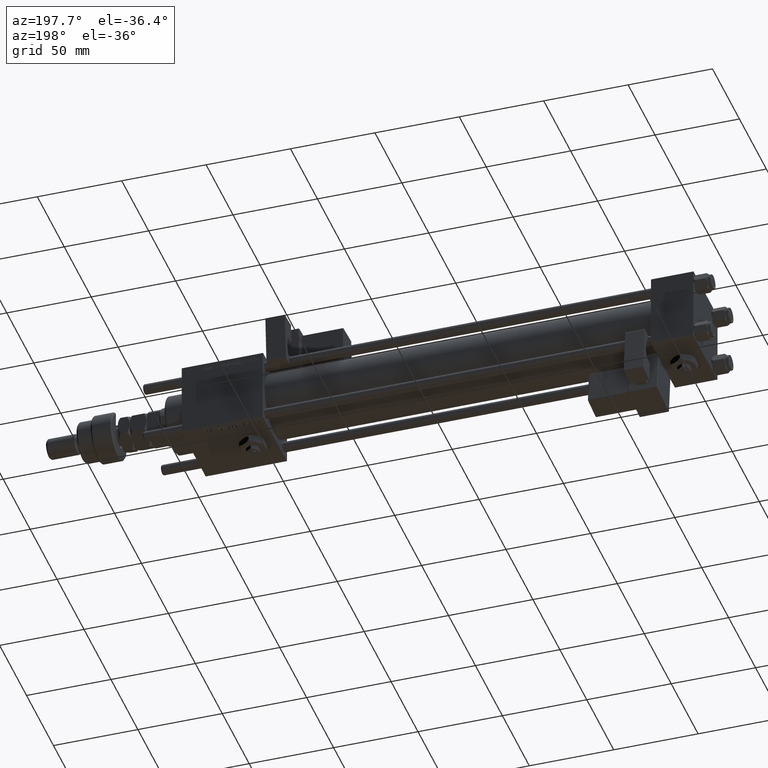
[diagram: clean part render]
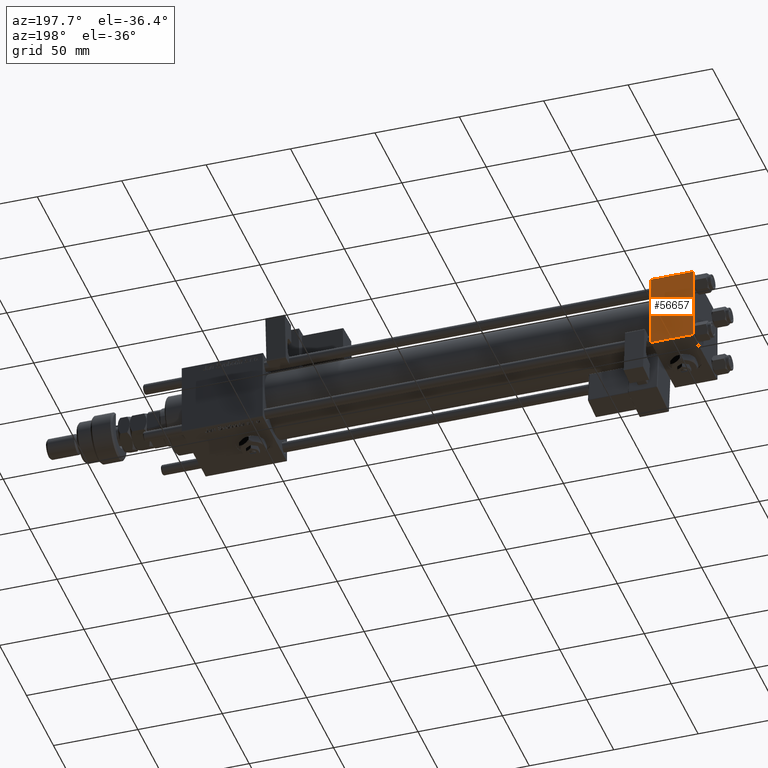
[diagram: same view with one face highlighted and labeled with its STEP entity id]
A machine part, auxiliary view. The second image highlights one B-rep face of the part: STEP entity #56657.
In plain terms, the highlighted planar face has unit normal (0, 1, 0).
Its self-contained STEP definition (entity closure, byte-faithful):
#335 = VERTEX_POINT ( 'NONE', #49929 ) ;
#3021 = CARTESIAN_POINT ( 'NONE',  ( 0.000000000000000000, 22.50000000000000000, -21.99999999999996803 ) ) ;
#6080 = LINE ( 'NONE', #40983, #53287 ) ;
#6921 = DIRECTION ( 'NONE',  ( 0.000000000000000000, -0.000000000000000000, 1.000000000000000000 ) ) ;
#9641 = EDGE_CURVE ( 'NONE', #15261, #34990, #15366, .T. ) ;
#12111 = LINE ( 'NONE', #31830, #22210 ) ;
#14577 = ORIENTED_EDGE ( 'NONE', *, *, #45523, .T. ) ;
#15261 = VERTEX_POINT ( 'NONE', #58933 ) ;
#15359 = CARTESIAN_POINT ( 'NONE',  ( 25.00000000000000000, 22.50000000000000000, 22.50000000000000355 ) ) ;
#15366 = LINE ( 'NONE', #35400, #59145 ) ;
#20717 = LINE ( 'NONE', #36235, #57941 ) ;
#21164 = PLANE ( 'NONE',  #27296 ) ;
#22210 = VECTOR ( 'NONE', #51519, 1000.000000000000000 ) ;
#27286 = ORIENTED_EDGE ( 'NONE', *, *, #59768, .T. ) ;
#27296 = AXIS2_PLACEMENT_3D ( 'NONE', #15359, #55097, #6921 ) ;
#31830 = CARTESIAN_POINT ( 'NONE',  ( 25.00000000000000000, 22.50000000000000000, 21.99999999999999645 ) ) ;
#33328 = EDGE_LOOP ( 'NONE', ( #14577, #40397, #38999, #27286 ) ) ;
#34990 = VERTEX_POINT ( 'NONE', #3021 ) ;
#35076 = DIRECTION ( 'NONE',  ( 0.000000000000000000, 0.000000000000000000, -1.000000000000000000 ) ) ;
#35400 = CARTESIAN_POINT ( 'NONE',  ( 0.000000000000000000, 22.50000000000000000, 22.50000000000000355 ) ) ;
#36235 = CARTESIAN_POINT ( 'NONE',  ( 25.00000000000000000, 22.50000000000000000, 22.50000000000000355 ) ) ;
#36472 = DIRECTION ( 'NONE',  ( -1.000000000000000000, 0.000000000000000000, 0.000000000000000000 ) ) ;
#38999 = ORIENTED_EDGE ( 'NONE', *, *, #9641, .F. ) ;
#39904 = FACE_OUTER_BOUND ( 'NONE', #33328, .T. ) ;
#40397 = ORIENTED_EDGE ( 'NONE', *, *, #63578, .T. ) ;
#40983 = CARTESIAN_POINT ( 'NONE',  ( 25.00000000000000000, 22.50000000000000000, -21.99999999999998224 ) ) ;
#45523 = EDGE_CURVE ( 'NONE', #335, #48918, #20717, .T. ) ;
#48918 = VERTEX_POINT ( 'NONE', #52837 ) ;
#49929 = CARTESIAN_POINT ( 'NONE',  ( 25.00000000000000000, 22.50000000000000000, 21.99999999999999645 ) ) ;
#51519 = DIRECTION ( 'NONE',  ( 1.000000000000000000, 0.000000000000000000, 0.000000000000000000 ) ) ;
#52837 = CARTESIAN_POINT ( 'NONE',  ( 25.00000000000000000, 22.50000000000000000, -21.99999999999996803 ) ) ;
#53287 = VECTOR ( 'NONE', #36472, 1000.000000000000000 ) ;
#54648 = DIRECTION ( 'NONE',  ( 0.000000000000000000, 0.000000000000000000, -1.000000000000000000 ) ) ;
#55097 = DIRECTION ( 'NONE',  ( -0.000000000000000000, 1.000000000000000000, 0.000000000000000000 ) ) ;
#56657 = ADVANCED_FACE ( 'NONE', ( #39904 ), #21164, .T. ) ;
#57941 = VECTOR ( 'NONE', #54648, 1000.000000000000000 ) ;
#58933 = CARTESIAN_POINT ( 'NONE',  ( 0.000000000000000000, 22.50000000000000000, 21.99999999999999645 ) ) ;
#59145 = VECTOR ( 'NONE', #35076, 1000.000000000000000 ) ;
#59768 = EDGE_CURVE ( 'NONE', #15261, #335, #12111, .T. ) ;
#63578 = EDGE_CURVE ( 'NONE', #48918, #34990, #6080, .T. ) ;